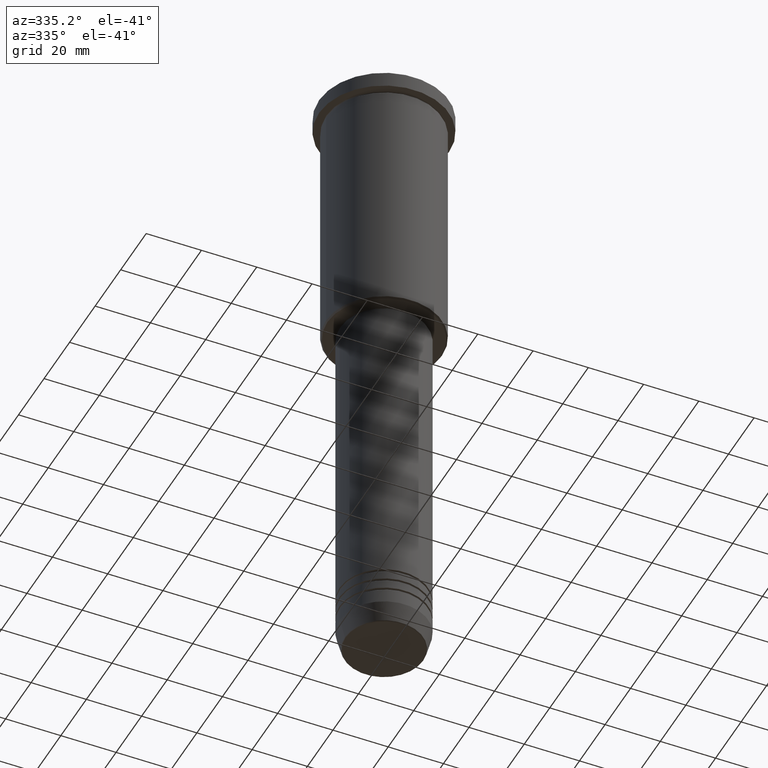
[diagram: clean part render]
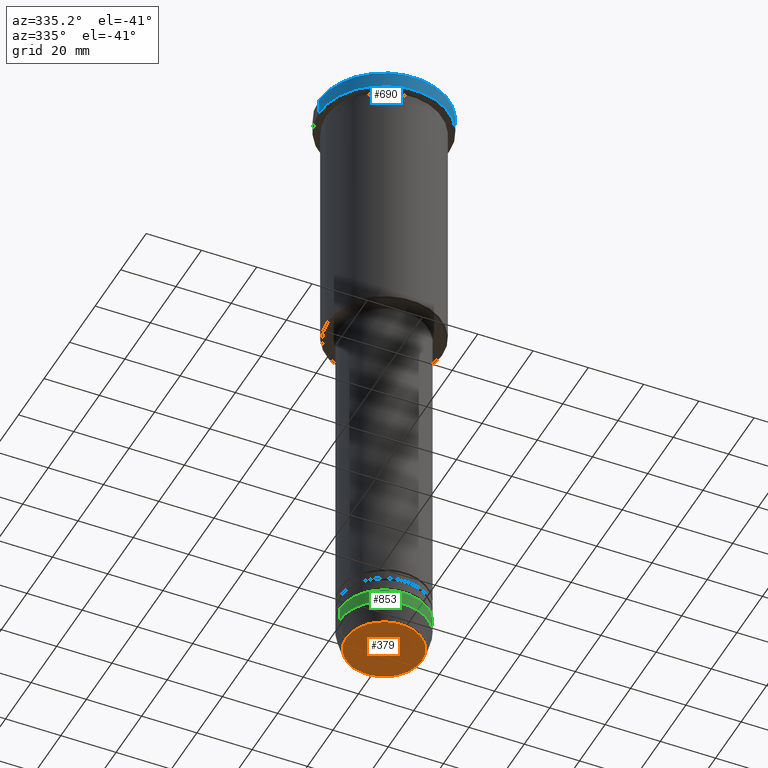
[diagram: same view with three faces highlighted in distinct colors, each labeled with its STEP entity id]
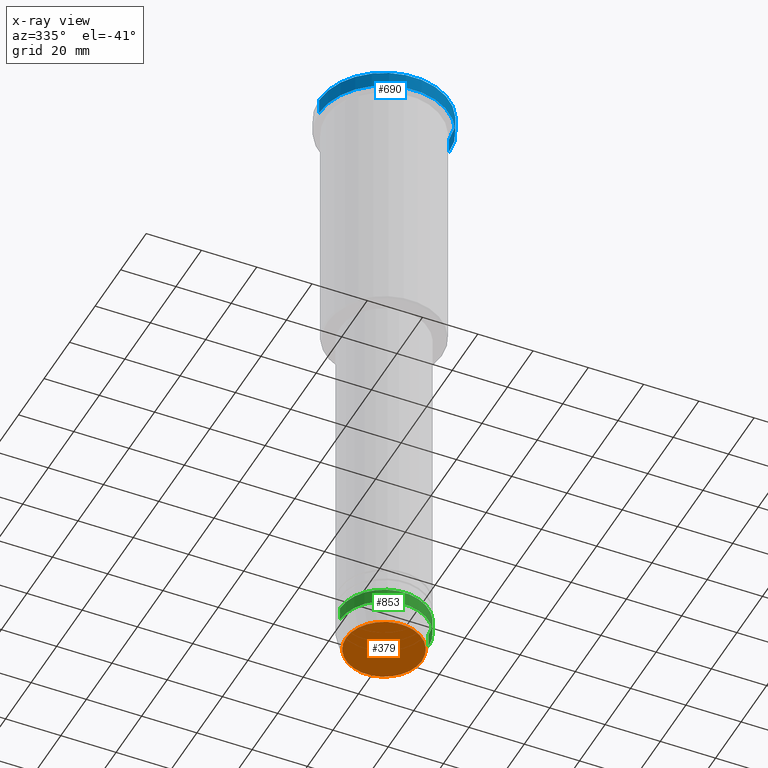
[diagram: x-ray of the same camera — body ghosted, the three highlighted faces saturated]
A machine part, auxiliary view with three faces highlighted in distinct colors.
The next image is the same camera in x-ray (body ghosted, the three faces saturated) — at least one of them is partly hidden behind the body in this view.
Their STEP definitions:

[orange] entity #379 — the highlighted planar face has unit normal (0, -0, 1).
#38 = DIRECTION ( 'NONE',  ( 1.000000000000000000, 0.000000000000000000, 0.000000000000000000 ) ) ;
#117 = VERTEX_POINT ( 'NONE', #157 ) ;
#120 = CARTESIAN_POINT ( 'NONE',  ( 0.000000000000000000, 0.000000000000000000, -231.0000000000000284 ) ) ;
#131 = DIRECTION ( 'NONE',  ( 0.000000000000000000, 0.000000000000000000, -1.000000000000000000 ) ) ;
#138 = AXIS2_PLACEMENT_3D ( 'NONE', #120, #740, #1108 ) ;
#148 = ORIENTED_EDGE ( 'NONE', *, *, #471, .T. ) ;
#157 = CARTESIAN_POINT ( 'NONE',  ( 13.74069215899265828, 0.000000000000000000, -231.0000000000000284 ) ) ;
#216 = FACE_OUTER_BOUND ( 'NONE', #425, .T. ) ;
#217 = VERTEX_POINT ( 'NONE', #998 ) ;
#379 = ADVANCED_FACE ( 'NONE', ( #216 ), #595, .F. ) ;
#425 = EDGE_LOOP ( 'NONE', ( #148, #691 ) ) ;
#429 = DIRECTION ( 'NONE',  ( 0.000000000000000000, 0.000000000000000000, -1.000000000000000000 ) ) ;
#471 = EDGE_CURVE ( 'NONE', #117, #217, #945, .T. ) ;
#521 = CIRCLE ( 'NONE', #1056, 13.74069215899265828 ) ;
#529 = EDGE_CURVE ( 'NONE', #217, #117, #521, .T. ) ;
#595 = PLANE ( 'NONE',  #138 ) ;
#607 = DIRECTION ( 'NONE',  ( 1.000000000000000000, 0.000000000000000000, 0.000000000000000000 ) ) ;
#682 = CARTESIAN_POINT ( 'NONE',  ( 0.000000000000000000, 0.000000000000000000, -231.0000000000000284 ) ) ;
#691 = ORIENTED_EDGE ( 'NONE', *, *, #529, .T. ) ;
#740 = DIRECTION ( 'NONE',  ( 0.000000000000000000, -0.000000000000000000, 1.000000000000000000 ) ) ;
#795 = CARTESIAN_POINT ( 'NONE',  ( 0.000000000000000000, 0.000000000000000000, -231.0000000000000284 ) ) ;
#945 = CIRCLE ( 'NONE', #1138, 13.74069215899265828 ) ;
#998 = CARTESIAN_POINT ( 'NONE',  ( -13.74069215899265828, 1.712322416342415986E-15, -231.0000000000000284 ) ) ;
#1056 = AXIS2_PLACEMENT_3D ( 'NONE', #682, #131, #607 ) ;
#1108 = DIRECTION ( 'NONE',  ( 1.000000000000000000, 0.000000000000000000, 0.000000000000000000 ) ) ;
#1138 = AXIS2_PLACEMENT_3D ( 'NONE', #795, #429, #38 ) ;

[blue] entity #690 — the highlighted cylindrical surface (partial cylindrical patch) has radius 23.5 mm, axis along (-0, -0, 1).
#140 = ORIENTED_EDGE ( 'NONE', *, *, #616, .F. ) ;
#143 = DIRECTION ( 'NONE',  ( 1.000000000000000000, 0.000000000000000000, 0.000000000000000000 ) ) ;
#145 = LINE ( 'NONE', #528, #982 ) ;
#155 = FACE_OUTER_BOUND ( 'NONE', #742, .T. ) ;
#165 = DIRECTION ( 'NONE',  ( 1.000000000000000000, 0.000000000000000000, 0.000000000000000000 ) ) ;
#173 = ORIENTED_EDGE ( 'NONE', *, *, #1157, .T. ) ;
#257 = CARTESIAN_POINT ( 'NONE',  ( 23.50000000000000000, 0.000000000000000000, -5.999999999999993783 ) ) ;
#348 = CARTESIAN_POINT ( 'NONE',  ( 0.000000000000000000, 0.000000000000000000, 0.000000000000000000 ) ) ;
#416 = EDGE_CURVE ( 'NONE', #658, #1015, #145, .T. ) ;
#428 = DIRECTION ( 'NONE',  ( 1.000000000000000000, 0.000000000000000000, 0.000000000000000000 ) ) ;
#439 = AXIS2_PLACEMENT_3D ( 'NONE', #348, #888, #165 ) ;
#443 = LINE ( 'NONE', #897, #782 ) ;
#526 = CARTESIAN_POINT ( 'NONE',  ( -23.50000000000000000, 2.877919977996280320E-15, -5.999999999999993783 ) ) ;
#528 = CARTESIAN_POINT ( 'NONE',  ( 23.50000000000000000, 0.000000000000000000, 0.000000000000000000 ) ) ;
#539 = CYLINDRICAL_SURFACE ( 'NONE', #439, 23.50000000000000000 ) ;
#545 = ORIENTED_EDGE ( 'NONE', *, *, #860, .T. ) ;
#614 = DIRECTION ( 'NONE',  ( -0.000000000000000000, -0.000000000000000000, 1.000000000000000000 ) ) ;
#616 = EDGE_CURVE ( 'NONE', #848, #760, #443, .T. ) ;
#658 = VERTEX_POINT ( 'NONE', #257 ) ;
#666 = ORIENTED_EDGE ( 'NONE', *, *, #416, .T. ) ;
#690 = ADVANCED_FACE ( 'NONE', ( #155 ), #539, .T. ) ;
#742 = EDGE_LOOP ( 'NONE', ( #140, #173, #666, #545 ) ) ;
#760 = VERTEX_POINT ( 'NONE', #1017 ) ;
#769 = AXIS2_PLACEMENT_3D ( 'NONE', #870, #880, #428 ) ;
#779 = CARTESIAN_POINT ( 'NONE',  ( 0.000000000000000000, 0.000000000000000000, -5.999999999999993783 ) ) ;
#782 = VECTOR ( 'NONE', #1164, 1000.000000000000000 ) ;
#847 = CARTESIAN_POINT ( 'NONE',  ( 23.50000000000000000, 0.000000000000000000, -0.4999999999999726885 ) ) ;
#848 = VERTEX_POINT ( 'NONE', #526 ) ;
#860 = EDGE_CURVE ( 'NONE', #1015, #760, #967, .T. ) ;
#870 = CARTESIAN_POINT ( 'NONE',  ( 0.000000000000000000, 0.000000000000000000, -0.4999999999999726885 ) ) ;
#880 = DIRECTION ( 'NONE',  ( 0.000000000000000000, 0.000000000000000000, -1.000000000000000000 ) ) ;
#888 = DIRECTION ( 'NONE',  ( -0.000000000000000000, -0.000000000000000000, 1.000000000000000000 ) ) ;
#897 = CARTESIAN_POINT ( 'NONE',  ( -23.50000000000000000, 2.877919977996280320E-15, 0.000000000000000000 ) ) ;
#928 = AXIS2_PLACEMENT_3D ( 'NONE', #779, #614, #143 ) ;
#967 = CIRCLE ( 'NONE', #769, 23.50000000000000000 ) ;
#982 = VECTOR ( 'NONE', #1155, 1000.000000000000000 ) ;
#1015 = VERTEX_POINT ( 'NONE', #847 ) ;
#1017 = CARTESIAN_POINT ( 'NONE',  ( -23.50000000000000000, 2.877919977996280320E-15, -0.4999999999999726885 ) ) ;
#1142 = CIRCLE ( 'NONE', #928, 23.50000000000000000 ) ;
#1155 = DIRECTION ( 'NONE',  ( -0.000000000000000000, -0.000000000000000000, 1.000000000000000000 ) ) ;
#1157 = EDGE_CURVE ( 'NONE', #848, #658, #1142, .T. ) ;
#1164 = DIRECTION ( 'NONE',  ( -0.000000000000000000, -0.000000000000000000, 1.000000000000000000 ) ) ;

[green] entity #853 — the highlighted cylindrical surface (partial cylindrical patch) has radius 16 mm, axis along (-0, -0, 1).
#13 = CARTESIAN_POINT ( 'NONE',  ( 0.000000000000000000, 0.000000000000000000, -219.0000000000000568 ) ) ;
#26 = VERTEX_POINT ( 'NONE', #693 ) ;
#29 = EDGE_CURVE ( 'NONE', #472, #765, #229, .T. ) ;
#39 = ORIENTED_EDGE ( 'NONE', *, *, #789, .F. ) ;
#84 = VECTOR ( 'NONE', #583, 1000.000000000000000 ) ;
#122 = VECTOR ( 'NONE', #783, 1000.000000000000000 ) ;
#128 = CYLINDRICAL_SURFACE ( 'NONE', #546, 16.00000000000000000 ) ;
#135 = DIRECTION ( 'NONE',  ( 1.000000000000000000, 0.000000000000000000, 0.000000000000000000 ) ) ;
#150 = CARTESIAN_POINT ( 'NONE',  ( 16.00000000000000000, 0.000000000000000000, -224.0000000000000284 ) ) ;
#170 = CARTESIAN_POINT ( 'NONE',  ( 0.000000000000000000, 0.000000000000000000, -224.0000000000000284 ) ) ;
#188 = CARTESIAN_POINT ( 'NONE',  ( -16.00000000000000000, 1.959434878635765131E-15, 0.000000000000000000 ) ) ;
#201 = CARTESIAN_POINT ( 'NONE',  ( 16.00000000000000000, 0.000000000000000000, -219.0000000000000568 ) ) ;
#204 = CIRCLE ( 'NONE', #301, 16.00000000000000000 ) ;
#205 = AXIS2_PLACEMENT_3D ( 'NONE', #13, #287, #659 ) ;
#218 = FACE_OUTER_BOUND ( 'NONE', #835, .T. ) ;
#229 = LINE ( 'NONE', #612, #122 ) ;
#237 = CARTESIAN_POINT ( 'NONE',  ( 0.000000000000000000, 0.000000000000000000, 0.000000000000000000 ) ) ;
#287 = DIRECTION ( 'NONE',  ( -0.000000000000000000, -0.000000000000000000, 1.000000000000000000 ) ) ;
#301 = AXIS2_PLACEMENT_3D ( 'NONE', #170, #1074, #810 ) ;
#323 = ORIENTED_EDGE ( 'NONE', *, *, #29, .T. ) ;
#324 = DIRECTION ( 'NONE',  ( -0.000000000000000000, -0.000000000000000000, 1.000000000000000000 ) ) ;
#469 = CARTESIAN_POINT ( 'NONE',  ( -16.00000000000000000, 1.959434878635765131E-15, -224.0000000000000284 ) ) ;
#472 = VERTEX_POINT ( 'NONE', #150 ) ;
#546 = AXIS2_PLACEMENT_3D ( 'NONE', #237, #324, #135 ) ;
#583 = DIRECTION ( 'NONE',  ( -0.000000000000000000, -0.000000000000000000, 1.000000000000000000 ) ) ;
#612 = CARTESIAN_POINT ( 'NONE',  ( 16.00000000000000000, 0.000000000000000000, 0.000000000000000000 ) ) ;
#623 = EDGE_CURVE ( 'NONE', #918, #472, #204, .T. ) ;
#659 = DIRECTION ( 'NONE',  ( 1.000000000000000000, 0.000000000000000000, 0.000000000000000000 ) ) ;
#693 = CARTESIAN_POINT ( 'NONE',  ( -16.00000000000000000, 1.959434878635765131E-15, -219.0000000000000568 ) ) ;
#756 = EDGE_CURVE ( 'NONE', #918, #26, #1031, .T. ) ;
#765 = VERTEX_POINT ( 'NONE', #201 ) ;
#783 = DIRECTION ( 'NONE',  ( -0.000000000000000000, -0.000000000000000000, 1.000000000000000000 ) ) ;
#789 = EDGE_CURVE ( 'NONE', #26, #765, #1059, .T. ) ;
#810 = DIRECTION ( 'NONE',  ( 1.000000000000000000, 0.000000000000000000, 0.000000000000000000 ) ) ;
#835 = EDGE_LOOP ( 'NONE', ( #1021, #969, #323, #39 ) ) ;
#853 = ADVANCED_FACE ( 'NONE', ( #218 ), #128, .T. ) ;
#918 = VERTEX_POINT ( 'NONE', #469 ) ;
#969 = ORIENTED_EDGE ( 'NONE', *, *, #623, .T. ) ;
#1021 = ORIENTED_EDGE ( 'NONE', *, *, #756, .F. ) ;
#1031 = LINE ( 'NONE', #188, #84 ) ;
#1059 = CIRCLE ( 'NONE', #205, 16.00000000000000000 ) ;
#1074 = DIRECTION ( 'NONE',  ( -0.000000000000000000, -0.000000000000000000, 1.000000000000000000 ) ) ;